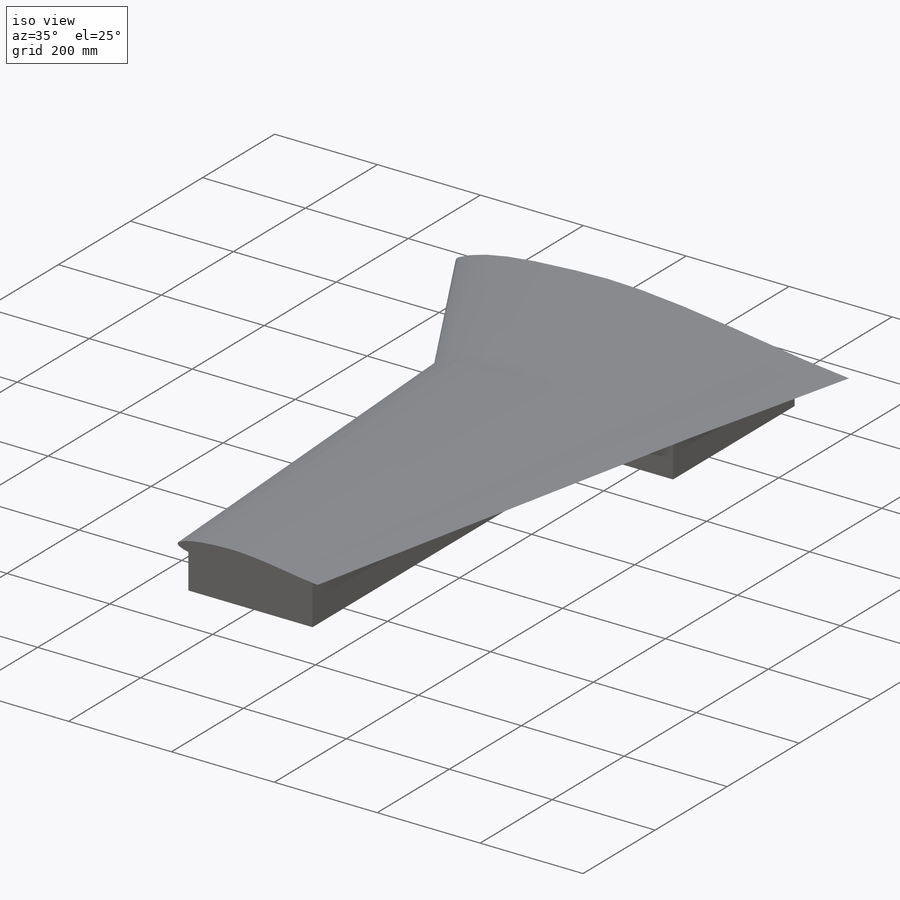
[diagram: iso view]
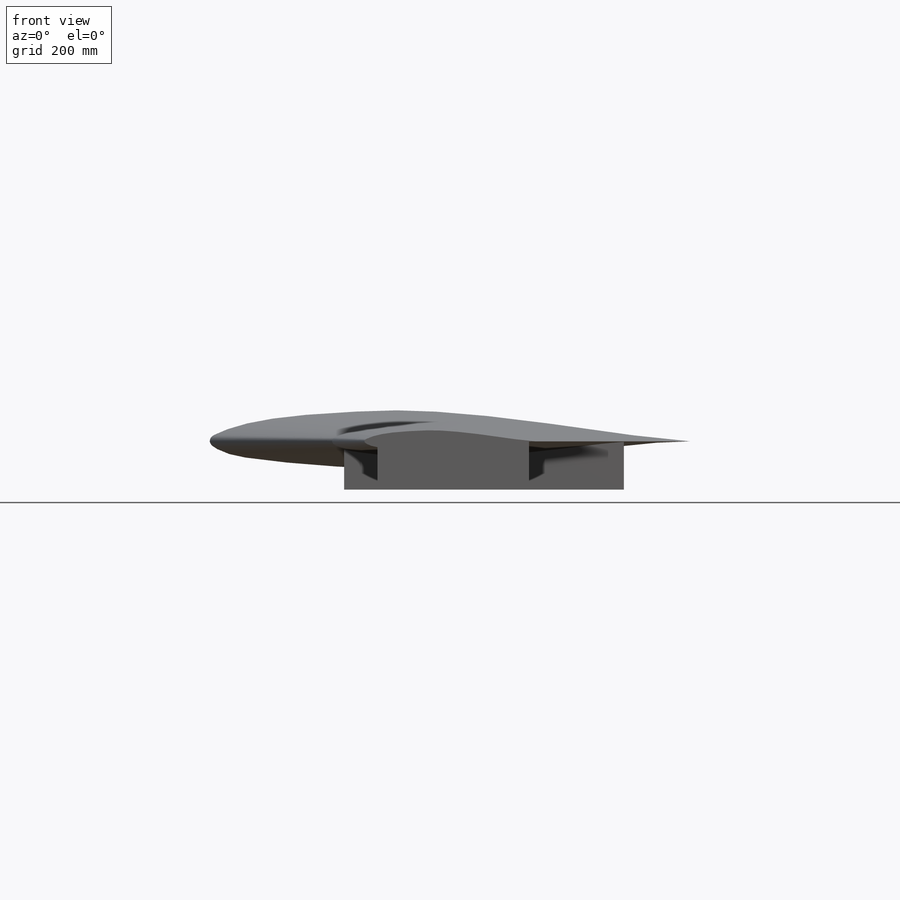
[diagram: front view]
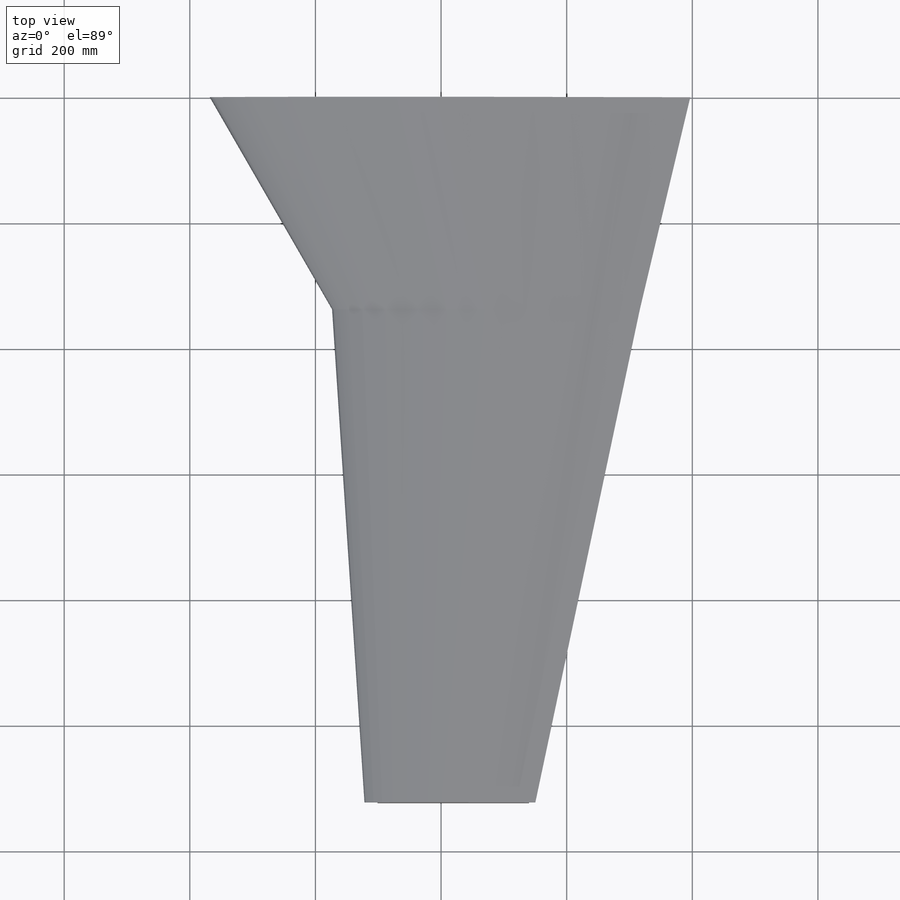
[diagram: top view]
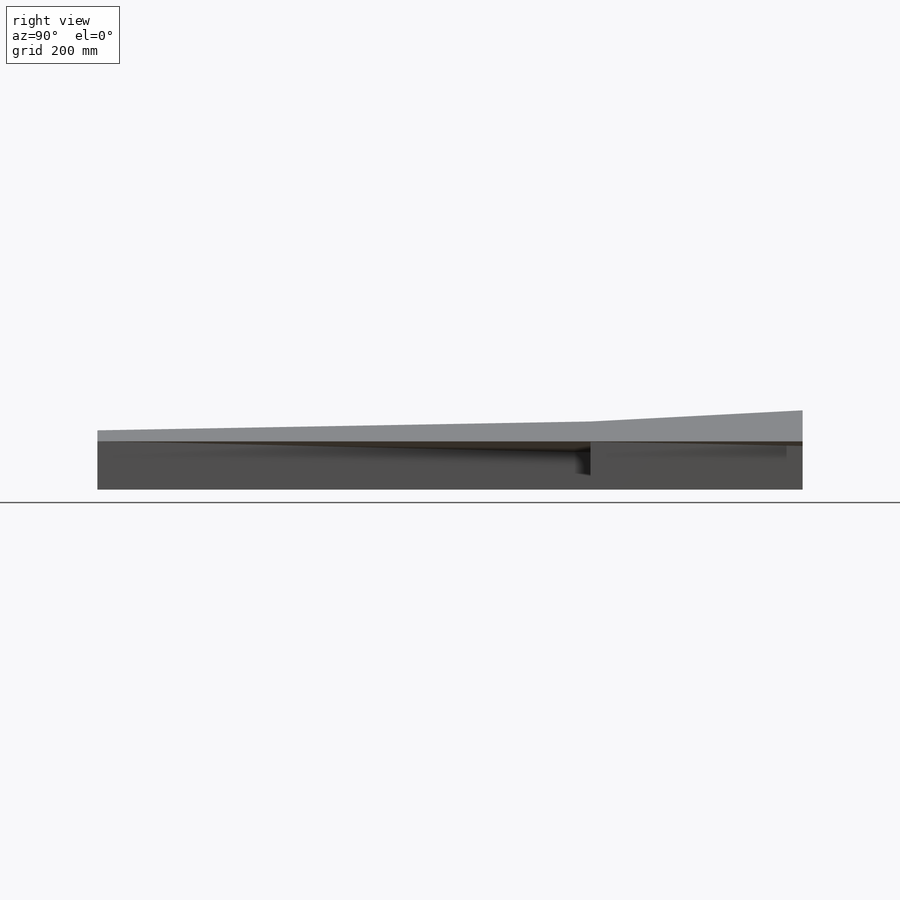
[diagram: right view]
SOLIDWORKS PART (.sldprt)
format: sldprt  version: not decoded by parser v0  size: 389,632 bytes
history: native  units: mm
features: plane x12, sketch x7, extrude x2, material x1 (+15 scaffold rows collapsed)
feature tree (37):
  scaffold x15  (default folders/planes/origin — collapsed)
  material  "Balsa"
  plane  "Plane Rib 1"
  plane  "Plane Rib 2"  Offset=111.506mm
  plane  "Plane Rib 3"  Offset=224.536mm
  plane  "Plane Rib 4"  Offset=337.82mm
  plane  "Plane Rib 5"  Offset=98.044mm
  plane  "Plane Rib 6"  Offset=196.342mm
  plane  "Plane Rib 7"  Offset=294.386mm
  plane  "Plane Rib 8"  Offset=392.684mm
  plane  "Plane Rib 9"  Offset=490.728mm
  plane  "Plane Rib 10"  Offset=588.772mm
  plane  "Plane Rib 11"  Offset=687.07mm
  plane  "Plane Rib 12"  Offset=785.114mm
  sketch  "Sketch Rib 1"  dims[c1.D1=~145.13569mm c2.D1=~1.871953deg c3.D1=368.3mm c3.D2=~753.873625mm c4.D1=368.3mm]
  sketch  "Sketch Rib 4"  dims[c1.D1=~674.117312mm c1.D2=~222.296237mm c2.D1=173.482mm]
  sketch  "Sketch Rib 12"  dims[D1=122.0765mm D2=121.92mm Loft7=0.0deg]
  sketch  "Sketch Rib 4<8>"
  sketch  "Sketch2"  dims[D1=~489.966664mm]
  extrude  "Construction Tab"  Depth=76.962mm
  sketch  "Sketch3"
  extrude  "Boss-Extrude2"  Depth=76.962mm
  sketch  "Sketch4"  dims[D1=~445.256448mm]
decode coverage: 7 of 9 modeling features carry decoded parameters
note: ~ marks probable driven/reference dimensions
note: suppression state not decoded; provenance and decode notes live in map.json
